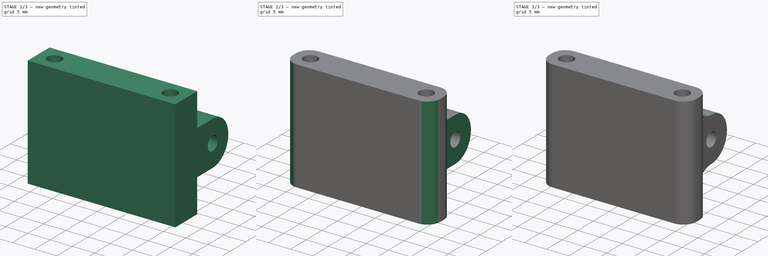
[diagram: build sequence overview — one tinted view per stage of 3, left to right]
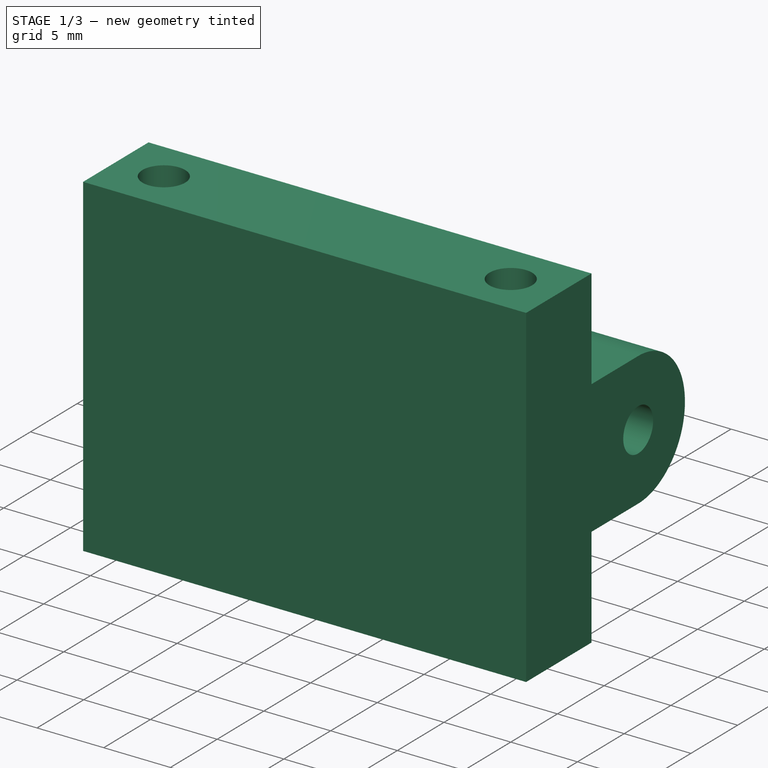
[diagram: stage 1 of 3 — iso view after this stage's code; geometry added in this stage tinted green]
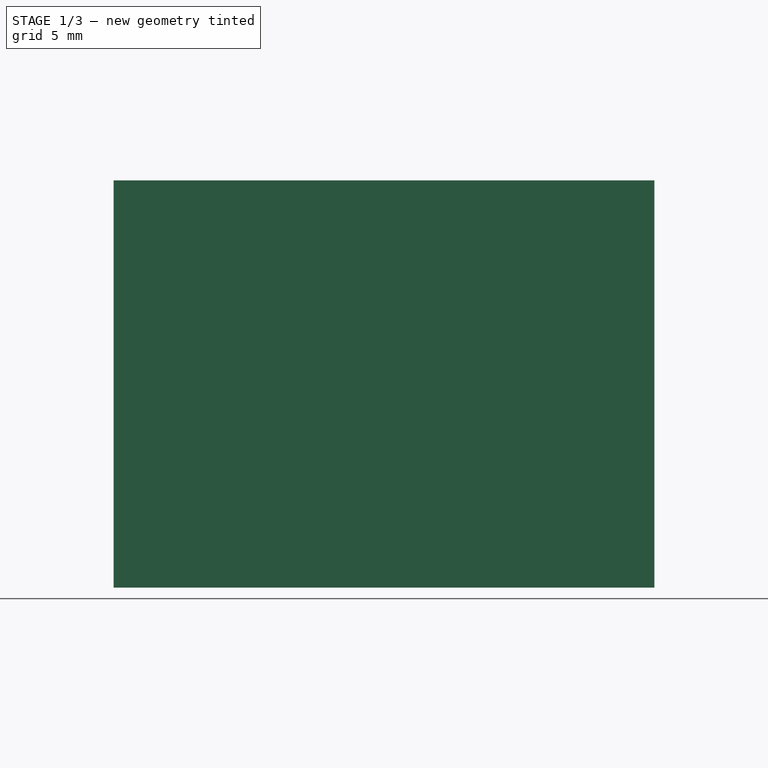
[diagram: stage 1 of 3 — front view after this stage's code; geometry added in this stage tinted green]
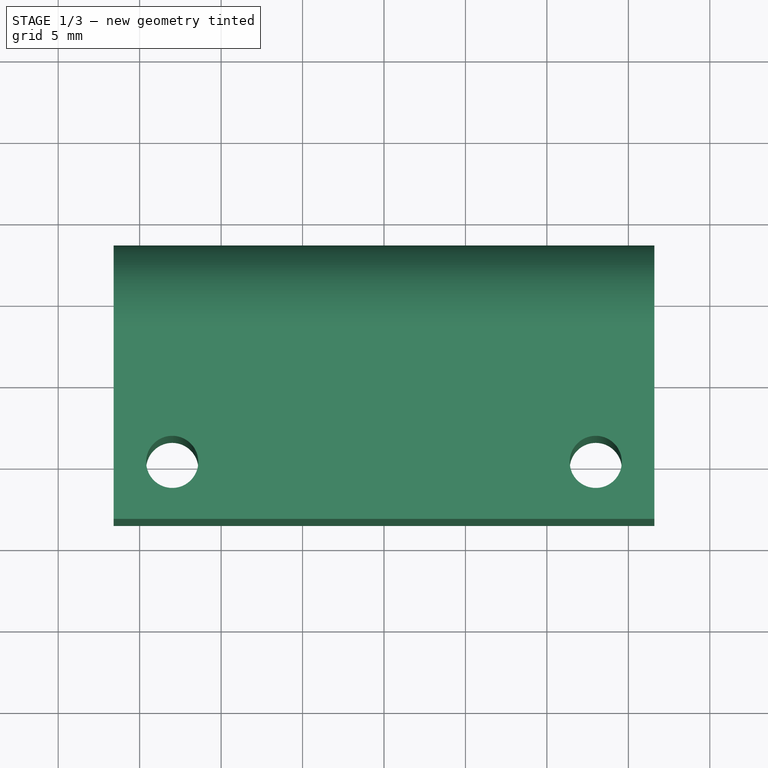
[diagram: stage 1 of 3 — top view after this stage's code; geometry added in this stage tinted green]
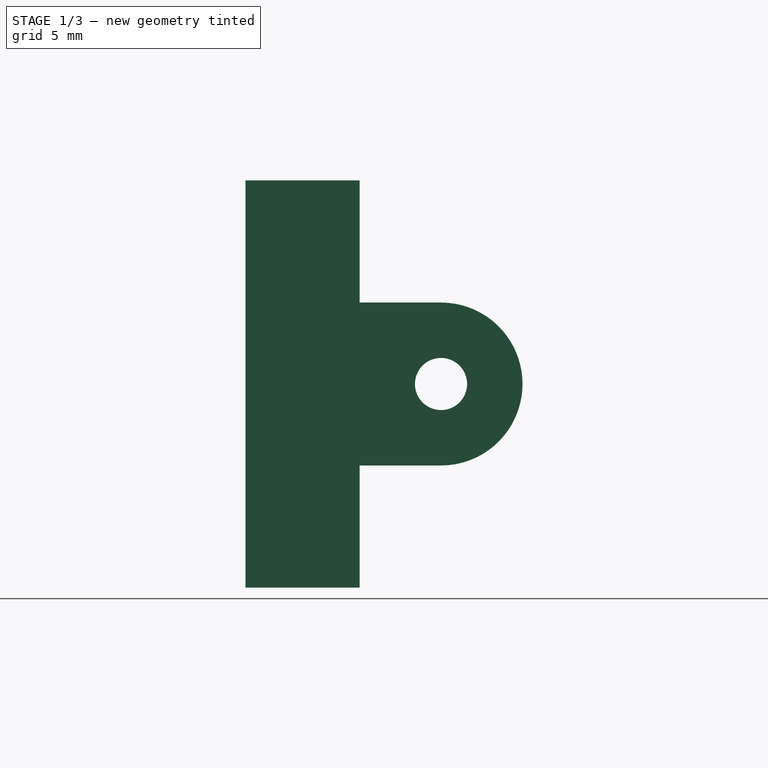
[diagram: stage 1 of 3 — right view after this stage's code; geometry added in this stage tinted green]
FCSTD DOCUMENT  (FreeCAD 0.20R29603 (Git))
Label: malcal-suporte-amortecedor-90
License: All rights reserved
LicenseURL: http://en.wikipedia.org/wiki/All_rights_reserved
objects: Sketcher::SketchObject×4, PartDesign::Pad×2, PartDesign::Pocket×2, PartDesign::Fillet×2, PartDesign::Body×1
note: 17 computed .brp shape members not serialized (recipe doc carries the construction recipe); baked Part::Feature solids carry a one-line shape summary decoded from their .brp

FEATURE [Sketcher::SketchObject] Sketch
  FullyConstrained = true
  MapMode = 5
  Support = -> [XY_Plane]
  sketch-geometry (12):
    g0: LineSegment StartX=-16.6 StartY=3.5 StartZ=0 EndX=16.6 EndY=3.5 EndZ=0
    g1: LineSegment StartX=16.6 StartY=3.5 StartZ=0 EndX=16.6 EndY=-3.5 EndZ=0
    g2: LineSegment StartX=16.6 StartY=-3.5 StartZ=0 EndX=-16.6 EndY=-3.5 EndZ=0
    g3: LineSegment StartX=-16.6 StartY=-3.5 StartZ=0 EndX=-16.6 EndY=3.5 EndZ=0
    g4: LineSegment StartX=-16.6 StartY=3.5 StartZ=0 EndX=16.6 EndY=-3.5 EndZ=0
    g5: LineSegment StartX=16.6 StartY=3.5 StartZ=0 EndX=-16.6 EndY=-3.5 EndZ=0
    g6: Circle CenterX=-13 CenterY=0 CenterZ=0 NormalX=0 NormalY=0 NormalZ=1 AngleXU=0 Radius=1.6
    g7: Circle CenterX=13 CenterY=0 CenterZ=0 NormalX=0 NormalY=0 NormalZ=1 AngleXU=0 Radius=1.6
    g8: LineSegment StartX=-13 StartY=0 StartZ=0 EndX=0 EndY=0 EndZ=0
    g9: LineSegment StartX=0 StartY=0 StartZ=0 EndX=13 EndY=0 EndZ=0
    g10: GeomPoint X=-14.6 Y=0 Z=0
    g11: GeomPoint X=-16.6 Y=0 Z=0
  constraints (30):
    c: Coincident(g0,g1)
    c: Coincident(g1,g2)
    c: Coincident(g2,g3)
    c: Coincident(g3,g0)
    c: Horizontal(g0)
    c: Horizontal(g2)
    c: Vertical(g1)
    c: Vertical(g3)
    c: Coincident(g4,g3)
    c: Coincident(g4,g1)
    c: Coincident(g5,g1)
    c: Coincident(g5,g2)
    c: PointOnObject(g-1,g5)
    c: PointOnObject(g-1,g4)
    c: DistanceY(g3,g3) = 7
    c: PointOnObject(g6,g-1)
    c: PointOnObject(g7,g-1)
    c: Coincident(g8,g6)
    c: Coincident(g9,g8)
    c: Coincident(g9,g7)
    c: Equal(g9,g8)
    c: Coincident(g8,g-1)
    c: Equal(g6,g7)
    c: Radius(g7) = 1.6
    c: PointOnObject(g11,g3)
    c: PointOnObject(g11,g-1)
    c: PointOnObject(g10,g6)
    c: DistanceX(g11,g10) = 2
    c: DistanceX(g6,g7) = 26
    c: PointOnObject(g10,g-1)
FEATURE [PartDesign::Pad] Pad
  Direction = (0,0,1)
  Length = 25
  Length2 = 10
  Profile = -> Sketch
  ReferenceAxis = -> Sketch [N_Axis]
  Type = 0
FEATURE [Sketcher::SketchObject] Sketch001
  ExternalGeometry = -> [Pad]
  FullyConstrained = true
  MapMode = 5
  Placement = pos=(-16.6,0,0) rot=(0.57735,-0.57735,-0.57735;2.0944rad)
  Support = -> [Pad]
  sketch-geometry (8):
    g0: LineSegment StartX=-3.5 StartY=25 StartZ=0 EndX=-3.5 EndY=17.5 EndZ=0
    g1: LineSegment StartX=-3.5 StartY=0 StartZ=0 EndX=-3.5 EndY=7.5 EndZ=0
    g2: LineSegment StartX=-3.5 StartY=17.5 StartZ=0 EndX=-3.5 EndY=7.5 EndZ=0
    g3: ArcOfCircle CenterX=-8.5 CenterY=12.5 CenterZ=0 NormalX=0 NormalY=0 NormalZ=1 AngleXU=0 Radius=5 StartAngle=1.5708 EndAngle=4.71239
    g4: LineSegment StartX=-8.5 StartY=7.5 StartZ=0 EndX=-3.5 EndY=7.5 EndZ=0
    g5: LineSegment StartX=-3.5 StartY=17.5 StartZ=0 EndX=-8.5 EndY=17.5 EndZ=0
    g6: Circle CenterX=-8.5 CenterY=12.5 CenterZ=0 NormalX=0 NormalY=0 NormalZ=1 AngleXU=0 Radius=5
    g7: Circle CenterX=-8.5 CenterY=12.5 CenterZ=0 NormalX=0 NormalY=0 NormalZ=1 AngleXU=0 Radius=1.6
  constraints (19):
    c: Coincident(g0,g-3)
    c: Coincident(g1,g-3)
    c: Coincident(g2,g0)
    c: Coincident(g2,g1)
    c: Equal(g1,g0)
    c: Vertical(g2)
    c: PointOnObject(g0,g-3)
    c: Tangent(g3,g4) = -1.5708
    c: Tangent(g5,g3) = -1.5708
    c: Coincident(g5,g0)
    c: Coincident(g4,g1)
    c: Horizontal(g4)
    c: Horizontal(g5)
    c: Coincident(g6,g3)
    c: Coincident(g7,g3)
    c: Equal(g6,g3)
    c: Tangent(g6,g2)
    c: Radius(g7) = 1.6
    c: Radius(g6) = 5
FEATURE [PartDesign::Pad] Pad001
  BaseFeature = -> Pad
  Direction = (-1,0,0)
  Length = 10
  Length2 = 10
  Profile = -> Sketch001
  ReferenceAxis = -> Sketch001 [N_Axis]
  Reversed = true
  Type = 3
  UpToFace = -> Pad [Face2]
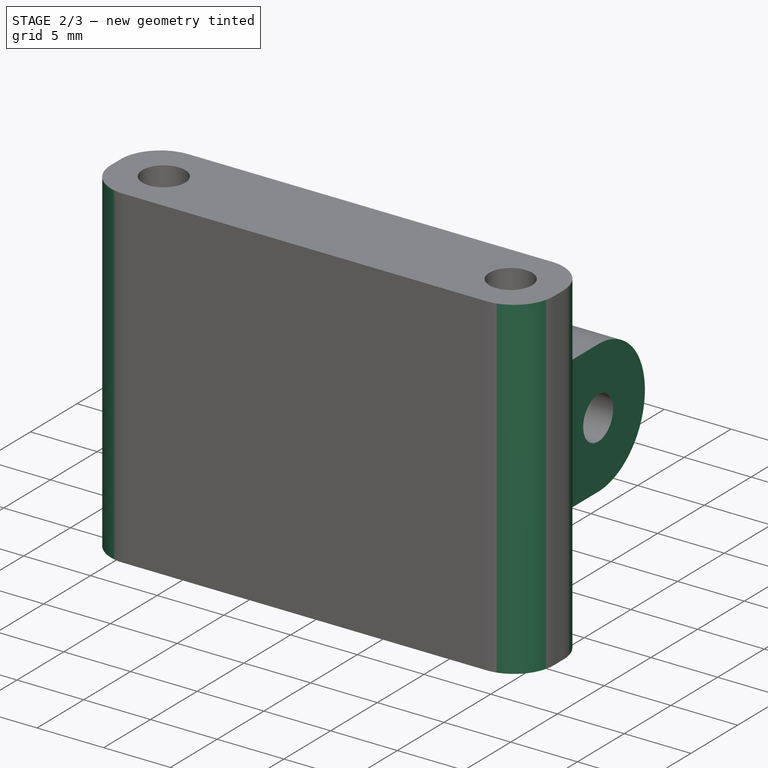
[diagram: stage 2 of 3 — iso view after this stage's code; geometry added in this stage tinted green]
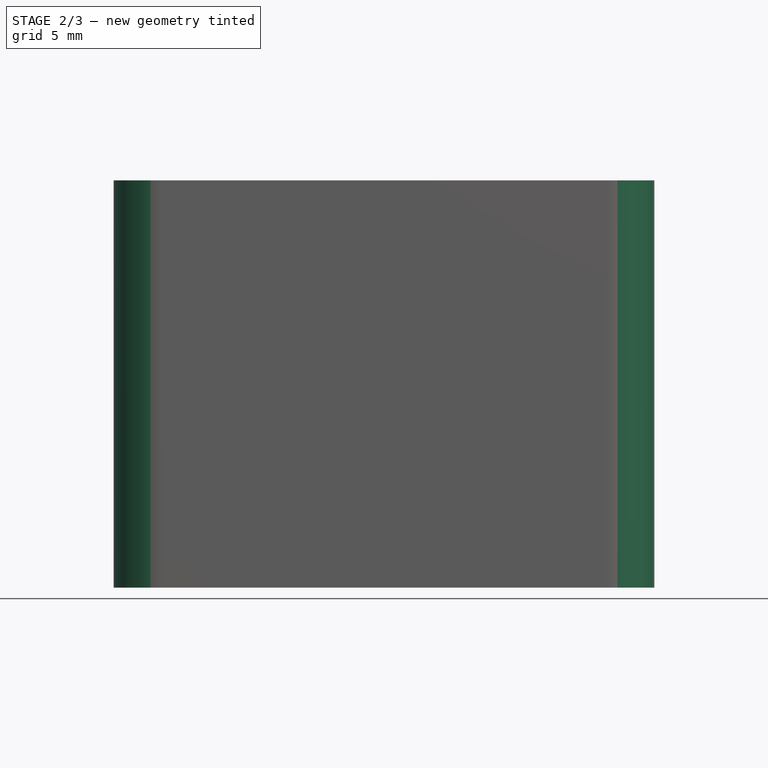
[diagram: stage 2 of 3 — front view after this stage's code; geometry added in this stage tinted green]
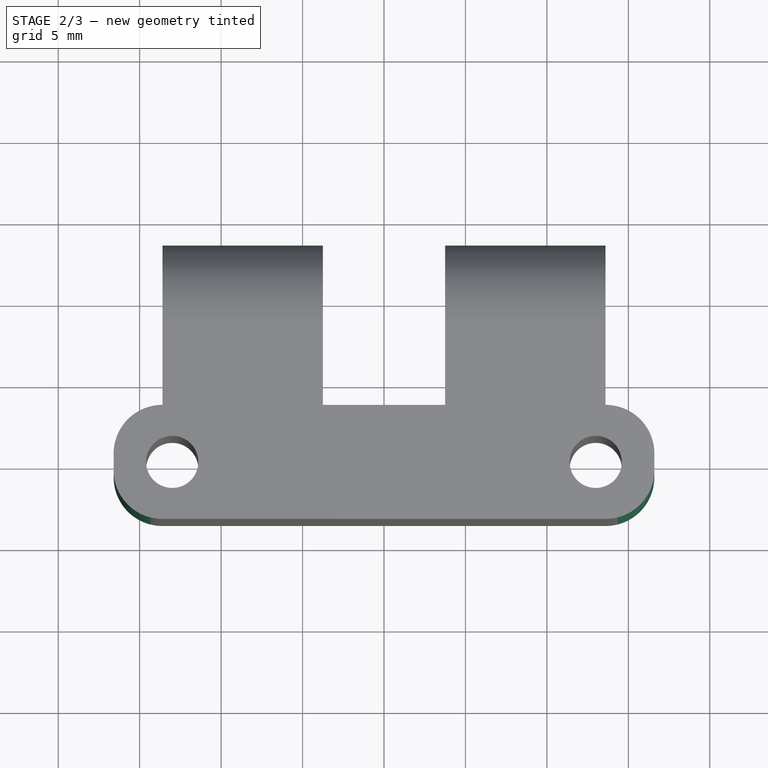
[diagram: stage 2 of 3 — top view after this stage's code; geometry added in this stage tinted green]
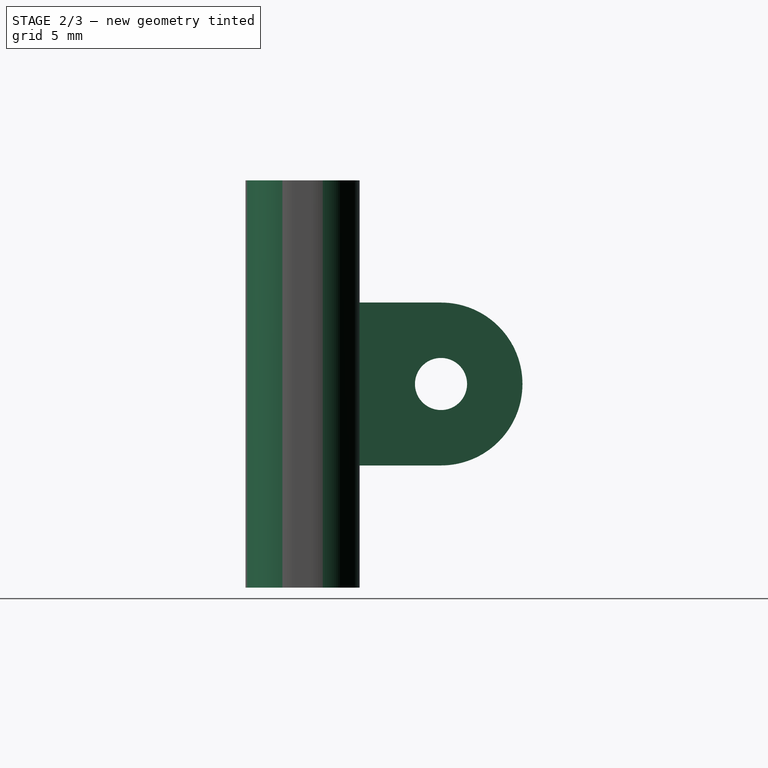
[diagram: stage 2 of 3 — right view after this stage's code; geometry added in this stage tinted green]
FEATURE [Sketcher::SketchObject] Sketch002
  ExternalGeometry = -> [Pad001]
  FullyConstrained = true
  MapMode = 5
  Placement = pos=(0,0,25) rot=(0,0,1;0rad)
  Support = -> [Pad001]
  sketch-geometry (14):
    g0: LineSegment StartX=-16.6 StartY=3.5 StartZ=0 EndX=-3.75 EndY=3.5 EndZ=0
    g1: LineSegment StartX=16.6 StartY=3.5 StartZ=0 EndX=3.75 EndY=3.5 EndZ=0
    g2: LineSegment StartX=-3.75 StartY=13.5 StartZ=0 EndX=3.75 EndY=13.5 EndZ=0
    g3: LineSegment StartX=3.75 StartY=13.5 StartZ=0 EndX=3.75 EndY=3.5 EndZ=0
    g4: LineSegment StartX=3.75 StartY=3.5 StartZ=0 EndX=-3.75 EndY=3.5 EndZ=0
    g5: LineSegment StartX=-3.75 StartY=3.5 StartZ=0 EndX=-3.75 EndY=13.5 EndZ=0
    g6: LineSegment StartX=-16.6 StartY=13.5 StartZ=0 EndX=-13.6 EndY=13.5 EndZ=0
    g7: LineSegment StartX=-13.6 StartY=13.5 StartZ=0 EndX=-13.6 EndY=3.5 EndZ=0
    g8: LineSegment StartX=-13.6 StartY=3.5 StartZ=0 EndX=-16.6 EndY=3.5 EndZ=0
    g9: LineSegment StartX=-16.6 StartY=3.5 StartZ=0 EndX=-16.6 EndY=13.5 EndZ=0
    g10: LineSegment StartX=13.6 StartY=13.5 StartZ=0 EndX=16.6 EndY=13.5 EndZ=0
    g11: LineSegment StartX=16.6 StartY=13.5 StartZ=0 EndX=16.6 EndY=3.5 EndZ=0
    g12: LineSegment StartX=16.6 StartY=3.5 StartZ=0 EndX=13.6 EndY=3.5 EndZ=0
    g13: LineSegment StartX=13.6 StartY=3.5 StartZ=0 EndX=13.6 EndY=13.5 EndZ=0
  constraints (38):
    c: Coincident(g0,g-3)
    c: Coincident(g1,g-3)
    c: Coincident(g2,g3)
    c: Coincident(g3,g4)
    c: Coincident(g4,g5)
    c: Coincident(g5,g2)
    c: Horizontal(g2)
    c: Horizontal(g4)
    c: Vertical(g3)
    c: Vertical(g5)
    c: Coincident(g4,g0)
    c: Coincident(g1,g3)
    c: Equal(g1,g0)
    c: PointOnObject(g4,g-3)
    c: Horizontal(g-4,g2)
    c: DistanceX(g2,g2) = 7.5
    c: Coincident(g6,g7)
    c: Coincident(g7,g8)
    c: Coincident(g8,g9)
    c: Coincident(g9,g6)
    c: Horizontal(g6)
    c: Horizontal(g8)
    c: Vertical(g7)
    c: Vertical(g9)
    c: Coincident(g10,g11)
    c: Coincident(g11,g12)
    c: Coincident(g12,g13)
    c: Coincident(g13,g10)
    c: Horizontal(g10)
    c: Horizontal(g12)
    c: Vertical(g11)
    c: Vertical(g13)
    c: Coincident(g8,g0)
    c: Coincident(g1,g11)
    c: Equal(g10,g6)
    c: DistanceX(g6,g6) = 3
    c: Horizontal(g6,g2)
    c: Horizontal(g10,g2)
FEATURE [PartDesign::Pocket] Pocket
  BaseFeature = -> Pad001
  Direction = (0,0,-1)
  Length = 5
  Length2 = 5
  Profile = -> Sketch002
  ReferenceAxis = -> Sketch002 [N_Axis]
  Type = 1
FEATURE [PartDesign::Fillet] Fillet
  Base = -> Pocket [Edge17,Edge19,Edge30,Edge28]
  BaseFeature = -> Pocket
  Radius = 2.99
  SupportTransform = false
  UseAllEdges = false
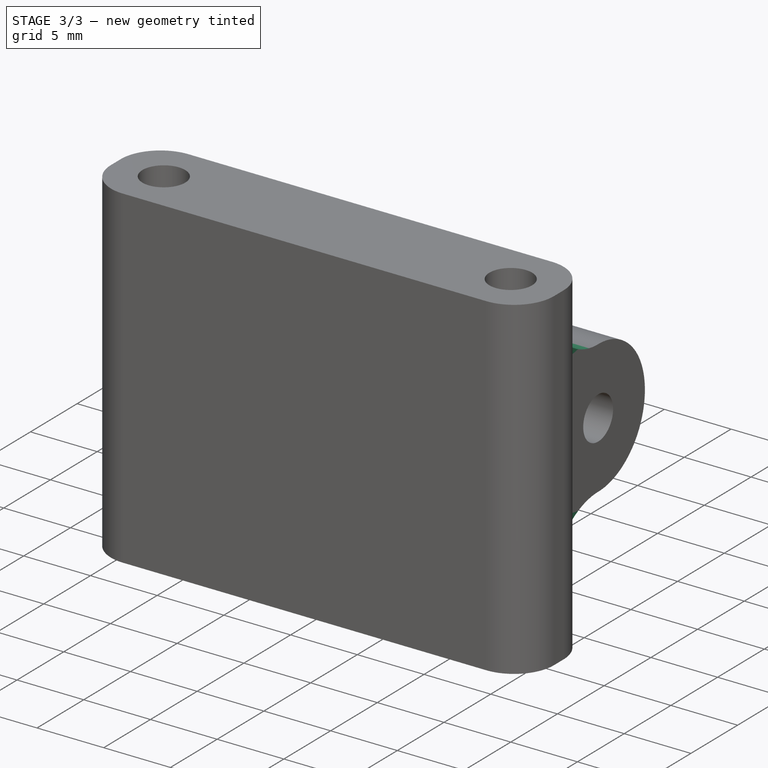
[diagram: stage 3 of 3 — iso view after this stage's code; geometry added in this stage tinted green]
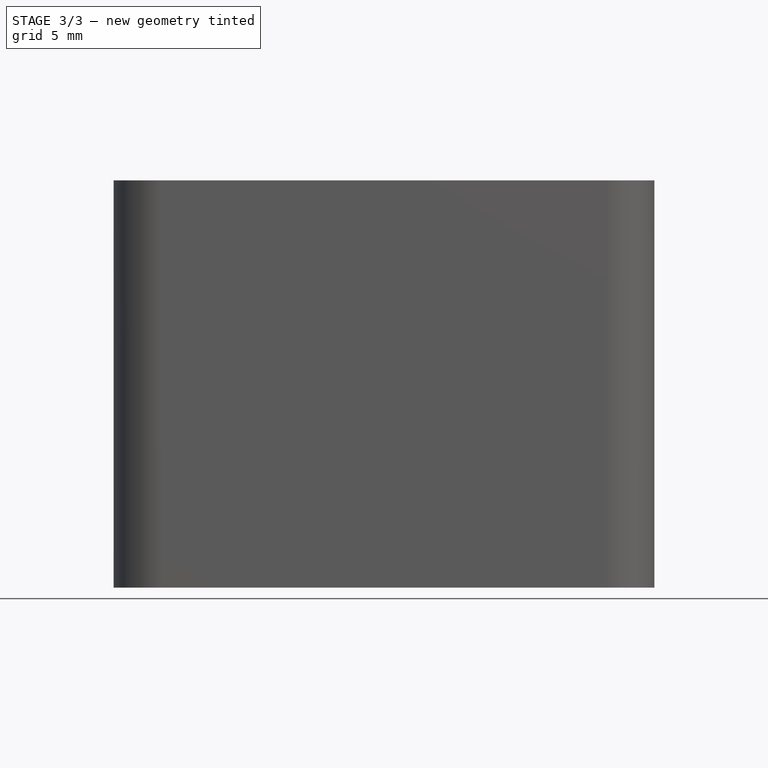
[diagram: stage 3 of 3 — front view after this stage's code; geometry added in this stage tinted green]
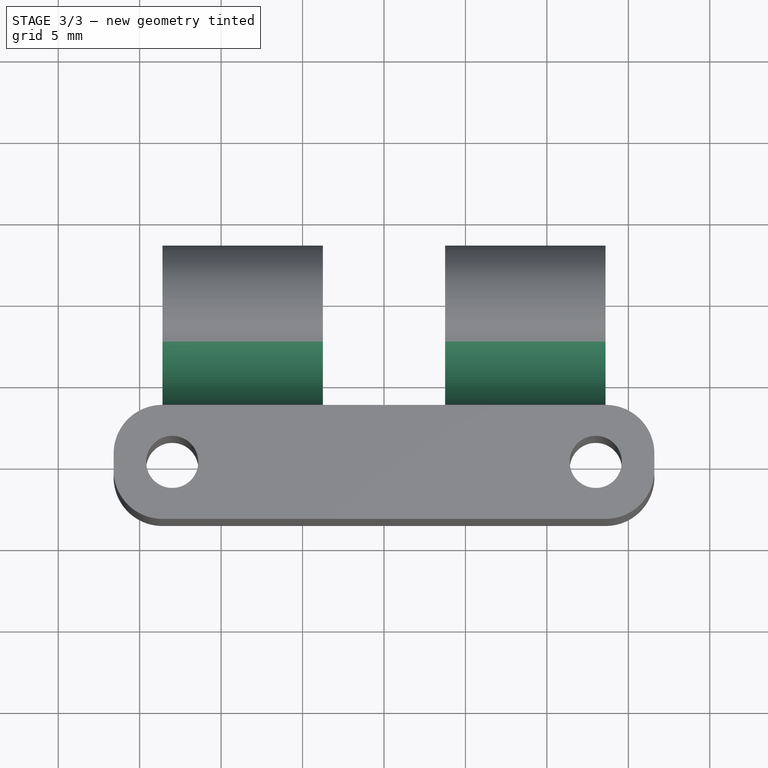
[diagram: stage 3 of 3 — top view after this stage's code; geometry added in this stage tinted green]
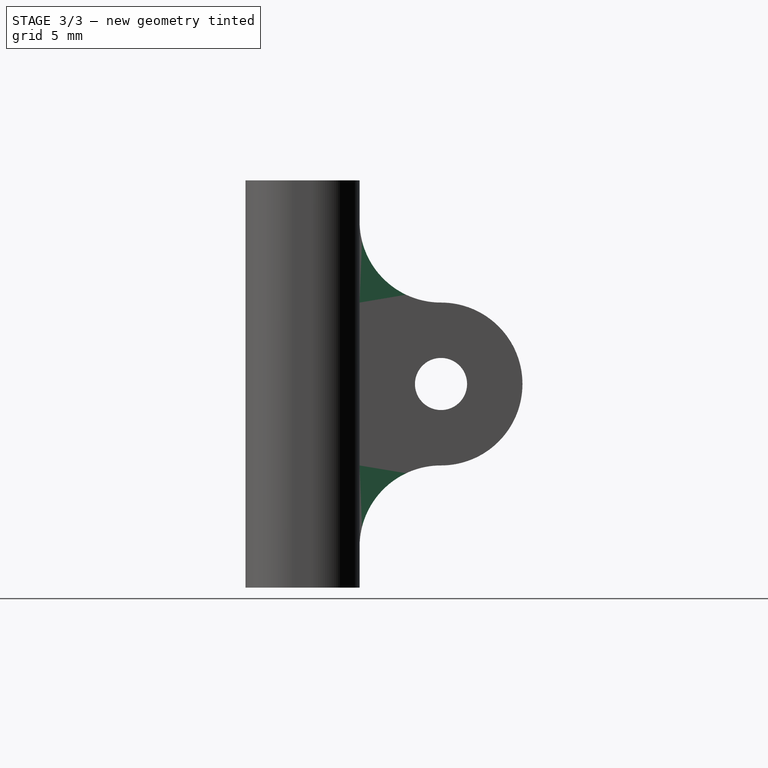
[diagram: stage 3 of 3 — right view after this stage's code; geometry added in this stage tinted green]
FEATURE [PartDesign::Fillet] Fillet001
  Base = -> Fillet [Edge87,Edge83,Edge34,Edge21]
  BaseFeature = -> Fillet
  Radius = 4.99
  SupportTransform = false
  UseAllEdges = false
FEATURE [Sketcher::SketchObject] Sketch003
  ExternalGeometry = -> [Fillet001]
  FullyConstrained = true
  MapMode = 5
  Placement = pos=(-13.6,0,0) rot=(0.57735,-0.57735,-0.57735;2.0944rad)
  Support = -> [Fillet001]
  sketch-geometry (7):
    g0: LineSegment StartX=-5.26684 StartY=12.5 StartZ=0 EndX=-6.88342 EndY=15.3 EndZ=0
    g1: LineSegment StartX=-6.88342 StartY=15.3 StartZ=0 EndX=-10.1166 EndY=15.3 EndZ=0
    g2: LineSegment StartX=-10.1166 StartY=15.3 StartZ=0 EndX=-11.7332 EndY=12.5 EndZ=0
    g3: LineSegment StartX=-11.7332 StartY=12.5 StartZ=0 EndX=-10.1166 EndY=9.7 EndZ=0
    g4: LineSegment StartX=-10.1166 StartY=9.7 StartZ=0 EndX=-6.88342 EndY=9.7 EndZ=0
    g5: LineSegment StartX=-6.88342 StartY=9.7 StartZ=0 EndX=-5.26684 EndY=12.5 EndZ=0
    g6: Circle CenterX=-8.5 CenterY=12.5 CenterZ=0 NormalX=0 NormalY=0 NormalZ=1 AngleXU=0 Radius=3.23316
  constraints (16):
    c: Coincident(g0,g1)
    c: Coincident(g1,g2)
    c: Coincident(g2,g3)
    c: Coincident(g3,g4)
    c: Coincident(g4,g5)
    c: Coincident(g5,g0)
    c: Equal(g0, g1-g5) x5
    c: PointOnObject(g0,g6)
    c: PointOnObject(g1,g6)
    c: PointOnObject(g2,g6)
    c: PointOnObject(g3,g6)
    c: PointOnObject(g4,g6)
    c: PointOnObject(g5,g6)
    c: Coincident(g6,g-3)
    c: Horizontal(g1)
    c: DistanceY(g3,g1) = 5.6
FEATURE [PartDesign::Pocket] Pocket001
  BaseFeature = -> Fillet001
  Direction = (1,0,0)
  Length = 2.5
  Length2 = 5
  Profile = -> Sketch003
  ReferenceAxis = -> Sketch003 [N_Axis]
  Type = 0
FEATURE [PartDesign::Body] Body
  Group = -> [Sketch,Pad,Sketch001,Pad001,Sketch002,Pocket,Fillet,Fillet001,Sketch003,Pocket001]
  Origin = -> Origin
  Tip = -> Pocket001
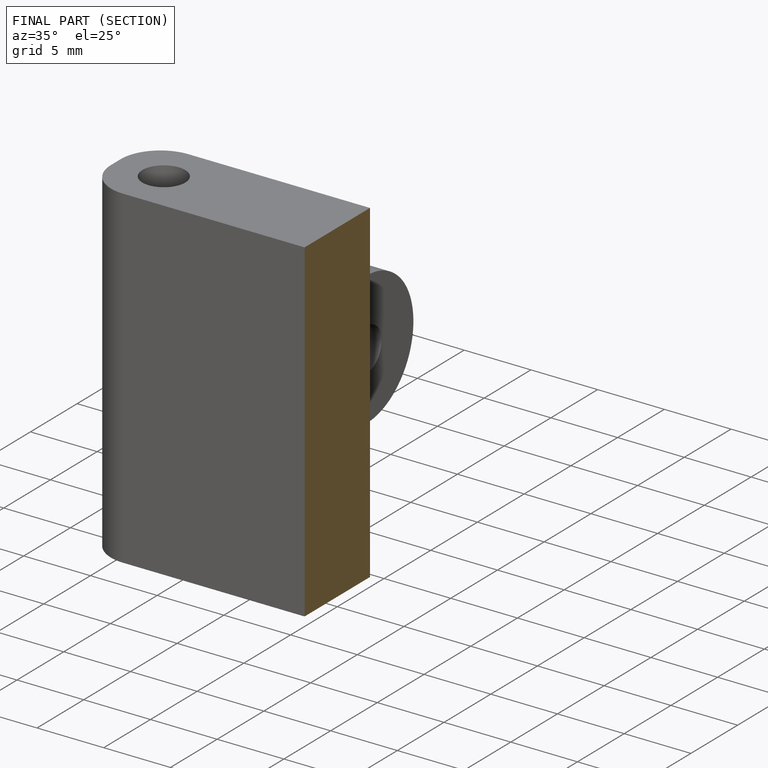
[diagram: finished part — half-section view (interior)]
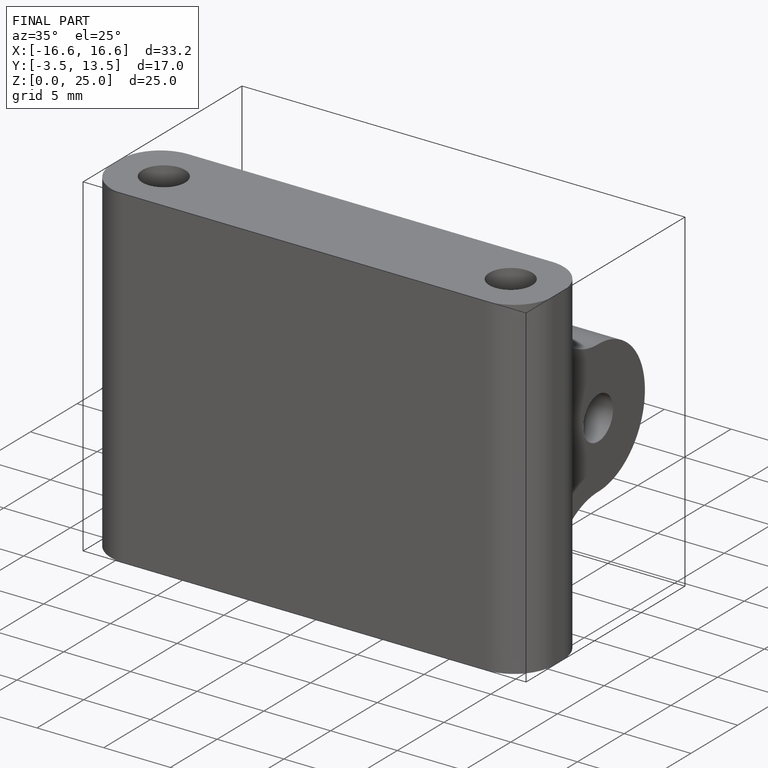
[diagram: finished part — iso view with bounding-box wireframe]
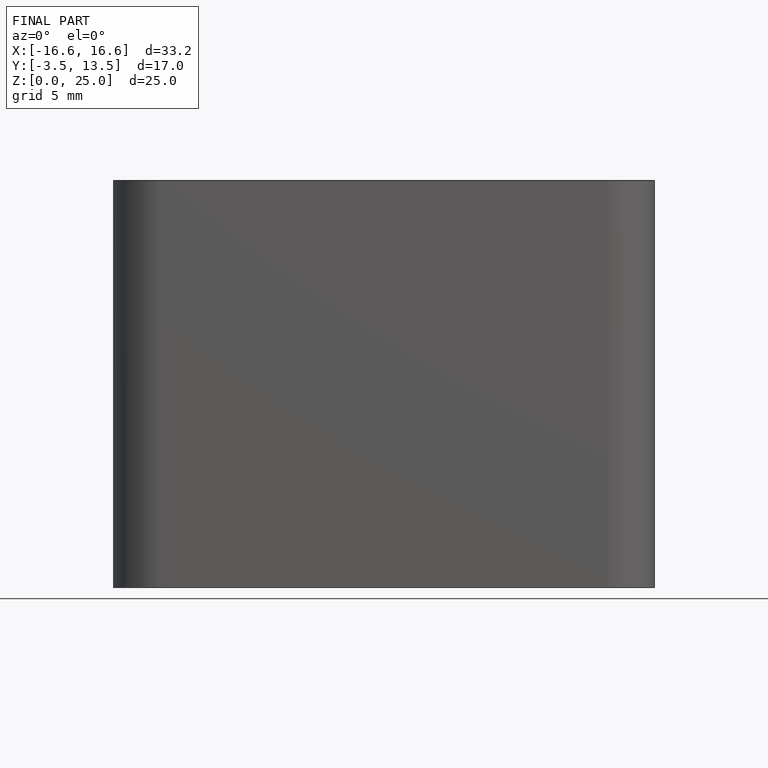
[diagram: finished part — front view with bounding-box wireframe]
